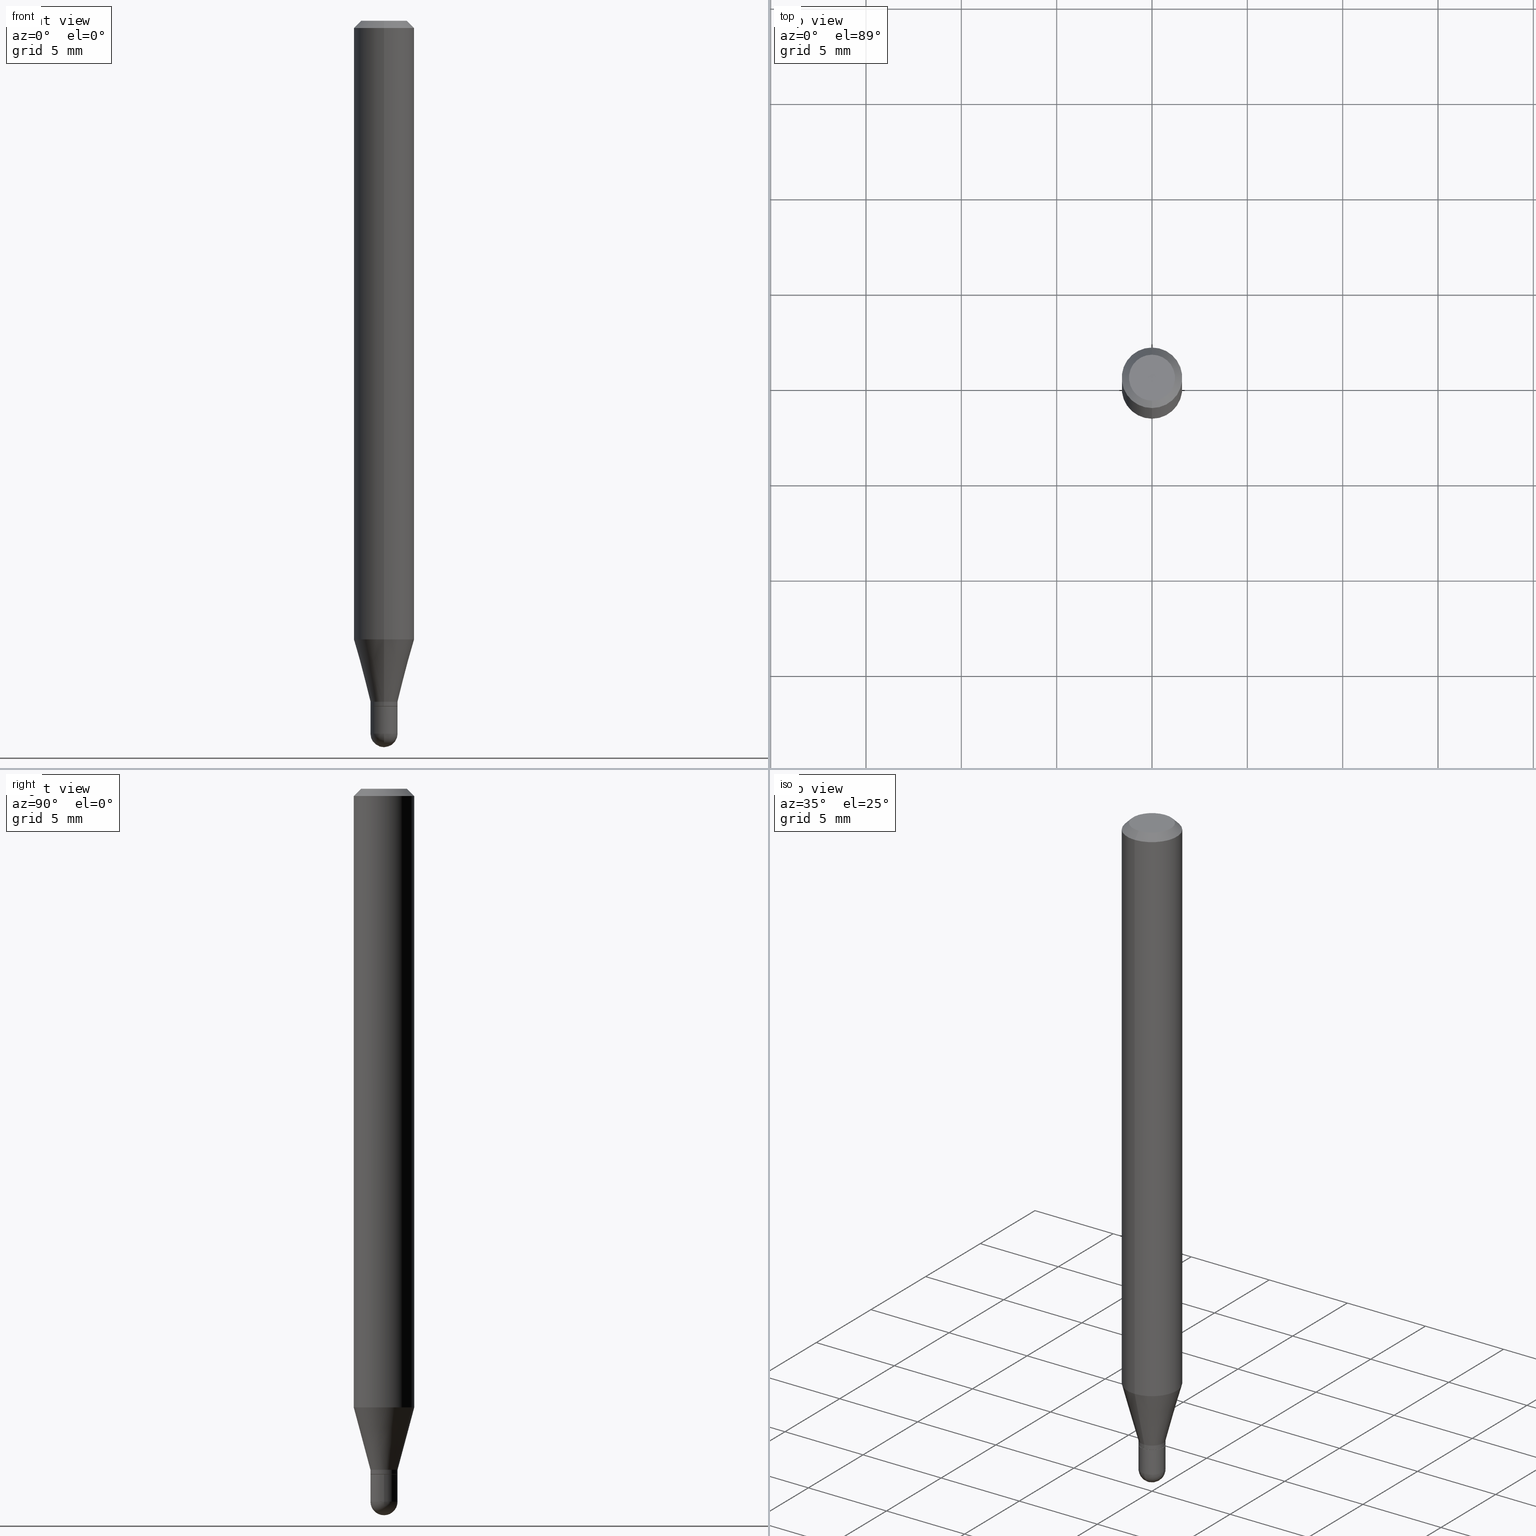
[diagram: canonical four-view strip — front | top / right | iso, engineering-drawing reading convention]
A machine part, canonical four-view strip (front | top / right | iso — engineering-drawing reading convention). The complete STEP part file that produces these views, byte-faithful:
ISO-10303-21;
HEADER;
FILE_DESCRIPTION (( 'STEP AP203' ),
    '1' );
FILE_NAME ('00791.STEP',
    '2024-03-07T18:22:40',
    ( '' ),
    ( '' ),
    'SwSTEP 2.0',
    'SolidWorks 2023',
    '' );
FILE_SCHEMA (( 'CONFIG_CONTROL_DESIGN' ));
ENDSEC;

DATA;
#1 = ORIENTED_EDGE ( 'NONE', *, *, #85, .F. ) ;
#2 = AXIS2_PLACEMENT_3D ( 'NONE', #501, #410, #339 ) ;
#3 = AXIS2_PLACEMENT_3D ( 'NONE', #360, #363, #94 ) ;
#4 = ORIENTED_EDGE ( 'NONE', *, *, #320, .F. ) ;
#5 = PERSON ( 'UNSPECIFIED', 'UNSPECIFIED', 'UNSPECIFIED', ('UNSPECIFIED'), ('UNSPECIFIED'), ('UNSPECIFIED') ) ;
#6 = ORIENTED_EDGE ( 'NONE', *, *, #29, .F. ) ;
#7 = ORIENTED_EDGE ( 'NONE', *, *, #409, .T. ) ;
#8 = DIRECTION ( 'NONE',  ( -2.445471327938569020E-29, 3.491477727548701218E-15, 1.000000000000000000 ) ) ;
#9 = AXIS2_PLACEMENT_3D ( 'NONE', #422, #216, #26 ) ;
#10 = CC_DESIGN_SECURITY_CLASSIFICATION ( #35, ( #80 ) ) ;
#11 = FACE_OUTER_BOUND ( 'NONE', #435, .T. ) ;
#12 = CARTESIAN_POINT ( 'NONE',  ( 3.840629472727447874E-16, 0.04749999999999999362, -1.747056831868805136E-16 ) ) ;
#13 = PLANE ( 'NONE',  #453 ) ;
#14 = APPROVAL ( #105, 'UNSPECIFIED' ) ;
#15 = LINE ( 'NONE', #436, #406 ) ;
#16 = AXIS2_PLACEMENT_3D ( 'NONE', #489, #59, #201 ) ;
#17 = VECTOR ( 'NONE', #284, 39.37007874015748143 ) ;
#18 = CARTESIAN_POINT ( 'NONE',  ( -4.287811248607203282E-16, -0.06250000000000005551, -0.01499999999999979128 ) ) ;
#19 = CARTESIAN_POINT ( 'NONE',  ( 0.000000000000000000, 0.000000000000000000, 0.000000000000000000 ) ) ;
#20 = CARTESIAN_POINT ( 'NONE',  ( 3.599730082704520905E-29, -5.139460530777110821E-15, -1.471999999999999975 ) ) ;
#21 = PERSON_AND_ORGANIZATION_ROLE ( 'creator' ) ;
#22 = CARTESIAN_POINT ( 'NONE',  ( 3.461564664697044766E-29, -4.942186723345187295E-15, -1.415500000000000203 ) ) ;
#23 = COORDINATED_UNIVERSAL_TIME_OFFSET ( 5, 0, .BEHIND. ) ;
#24 = VERTEX_POINT ( 'NONE', #404 ) ;
#25 = LOCAL_TIME ( 13, 22, 40.00000000000000000, #31 ) ;
#26 = DIRECTION ( 'NONE',  ( 1.000000000000000000, -6.982962677686262766E-15, 0.000000000000000000 ) ) ;
#27 = CALENDAR_DATE ( 2024, 7, 3 ) ;
#28 = PLANE ( 'NONE',  #477 ) ;
#29 = EDGE_CURVE ( 'NONE', #358, #117, #427, .T. ) ;
#30 = DIRECTION ( 'NONE',  ( -1.807323732225330139E-15, -0.2588190451025181860, 0.9659258262890689783 ) ) ;
#31 = COORDINATED_UNIVERSAL_TIME_OFFSET ( 5, 0, .BEHIND. ) ;
#32 = CARTESIAN_POINT ( 'NONE',  ( 0.000000000000000000, 0.000000000000000000, 0.000000000000000000 ) ) ;
#33 = CIRCLE ( 'NONE', #141, 0.02800000000000000752 ) ;
#34 = ORIENTED_EDGE ( 'NONE', *, *, #354, .T. ) ;
#35 = SECURITY_CLASSIFICATION ( '', '', #345 ) ;
#36 = VERTEX_POINT ( 'NONE', #89 ) ;
#37 = EDGE_CURVE ( 'NONE', #358, #269, #494, .T. ) ;
#38 = ORIENTED_EDGE ( 'NONE', *, *, #230, .F. ) ;
#39 = ORIENTED_EDGE ( 'NONE', *, *, #320, .T. ) ;
#40 = PRODUCT ( '00791', '00791', '', ( #454 ) ) ;
#41 = CIRCLE ( 'NONE', #149, 0.02800000000000000405 ) ;
#42 = APPROVAL_PERSON_ORGANIZATION ( #500, #275, #343 ) ;
#43 = ORIENTED_EDGE ( 'NONE', *, *, #70, .T. ) ;
#44 = ADVANCED_FACE ( 'NONE', ( #323 ), #57, .T. ) ;
#45 = PRODUCT_RELATED_PRODUCT_CATEGORY ( 'detail', '', ( #40 ) ) ;
#46 = VERTEX_POINT ( 'NONE', #51 ) ;
#47 = CARTESIAN_POINT ( 'NONE',  ( 3.462783829558154044E-29, -4.943937575801894533E-15, -1.416000000000000147 ) ) ;
#48 = CARTESIAN_POINT ( 'NONE',  ( -4.364351673553916201E-16, -0.06250000000000000000, 2.182173579717938261E-16 ) ) ;
#49 = AXIS2_PLACEMENT_3D ( 'NONE', #95, #241, #318 ) ;
#50 = AXIS2_PLACEMENT_3D ( 'NONE', #167, #128, #131 ) ;
#51 = CARTESIAN_POINT ( 'NONE',  ( 4.440892098500935790E-16, 0.06249999999999551747, -1.277244247138874522 ) ) ;
#52 = CARTESIAN_POINT ( 'NONE',  ( -4.364351673553912750E-16, -0.06250000000000005551, -0.01499999999999979128 ) ) ;
#53 = DIRECTION ( 'NONE',  ( -2.445468806185136597E-29, 3.491481338843145583E-15, 1.000000000000000000 ) ) ;
#54 = FACE_OUTER_BOUND ( 'NONE', #352, .T. ) ;
#55 = LINE ( 'NONE', #247, #310 ) ;
#56 = DIRECTION ( 'NONE',  ( -2.445471327938569020E-29, 3.491477727548701218E-15, 1.000000000000000000 ) ) ;
#57 = CONICAL_SURFACE ( 'NONE', #441, 0.02799999999999992426, 0.2617993877991502960 ) ;
#58 = EDGE_CURVE ( 'NONE', #473, #295, #41, .T. ) ;
#59 = DIRECTION ( 'NONE',  ( 1.000000000000000000, -6.982962677686265922E-15, 4.883557194083112340E-29 ) ) ;
#60 = CARTESIAN_POINT ( 'NONE',  ( 1.953992523340621634E-16, 0.02749999999999505965, -1.416000000000000147 ) ) ;
#61 = COORDINATED_UNIVERSAL_TIME_OFFSET ( 5, 0, .BEHIND. ) ;
#62 = EDGE_LOOP ( 'NONE', ( #212, #38 ) ) ;
#63 = CARTESIAN_POINT ( 'NONE',  ( -1.989519660127922616E-16, -0.02800000000000517353, -1.471999999999999975 ) ) ;
#64 = DATE_AND_TIME ( #299, #251 ) ;
#65 = ORIENTED_EDGE ( 'NONE', *, *, #103, .F. ) ;
#66 = LOCAL_TIME ( 13, 22, 40.00000000000000000, #23 ) ;
#67 = LINE ( 'NONE', #182, #378 ) ;
#68 = DIRECTION ( 'NONE',  ( 1.000000000000000000, 0.000000000000000000, 0.000000000000000000 ) ) ;
#69 = ORIENTED_EDGE ( 'NONE', *, *, #504, .T. ) ;
#70 = EDGE_CURVE ( 'NONE', #184, #385, #195, .T. ) ;
#71 = CARTESIAN_POINT ( 'NONE',  ( 2.166807700575379418E-46, -3.093620742966239913E-32, -8.860491128317210045E-18 ) ) ;
#72 = LENGTH_MEASURE_WITH_UNIT ( LENGTH_MEASURE( 0.02539999999999999897 ), #98 );
#73 = DIRECTION ( 'NONE',  ( -2.445468806185136877E-29, 3.491481338843145188E-15, 1.000000000000000000 ) ) ;
#74 = ORIENTED_EDGE ( 'NONE', *, *, #456, .T. ) ;
#75 = ADVANCED_FACE ( 'NONE', ( #481 ), #127, .T. ) ;
#76 = CARTESIAN_POINT ( 'NONE',  ( 3.123464185152600685E-29, -4.459469841525088117E-15, -1.277244247138874078 ) ) ;
#77 = CIRCLE ( 'NONE', #240, 0.04749999999999999362 ) ;
#78 = CIRCLE ( 'NONE', #173, 0.04749999999999999362 ) ;
#79 = ORIENTED_EDGE ( 'NONE', *, *, #354, .F. ) ;
#80 = PRODUCT_DEFINITION_FORMATION_WITH_SPECIFIED_SOURCE ( 'ANY', '', #40, .NOT_KNOWN. ) ;
#81 = ADVANCED_FACE ( 'NONE', ( #326 ), #163, .T. ) ;
#82 = VERTEX_POINT ( 'NONE', #487 ) ;
#83 = ORIENTED_EDGE ( 'NONE', *, *, #368, .F. ) ;
#84 = ORIENTED_EDGE ( 'NONE', *, *, #376, .T. ) ;
#85 = EDGE_CURVE ( 'NONE', #413, #421, #395, .T. ) ;
#86 = ORIENTED_EDGE ( 'NONE', *, *, #469, .T. ) ;
#87 = CARTESIAN_POINT ( 'NONE',  ( 1.955229549752501107E-16, 0.02799999999999506009, -1.416000000000000147 ) ) ;
#88 = DIRECTION ( 'NONE',  ( -2.445471327938569020E-29, 3.491477727548701218E-15, 1.000000000000000000 ) ) ;
#89 = CARTESIAN_POINT ( 'NONE',  ( -4.364351673553605587E-16, -0.06250000000000446865, -1.277244247138873856 ) ) ;
#90 = CYLINDRICAL_SURFACE ( 'NONE', #464, 0.02800000000000000752 ) ;
#91 = AXIS2_PLACEMENT_3D ( 'NONE', #332, #491, #175 ) ;
#92 = AXIS2_PLACEMENT_3D ( 'NONE', #76, #155, #348 ) ;
#93 = DIRECTION ( 'NONE',  ( -6.982962677686266711E-15, -1.000000000000000000, 0.000000000000000000 ) ) ;
#94 = DIRECTION ( 'NONE',  ( -6.982962677686266711E-15, -1.000000000000000000, 0.000000000000000000 ) ) ;
#95 = CARTESIAN_POINT ( 'NONE',  ( 3.438332687081628621E-29, -4.909017684933475227E-15, -1.406000000000000139 ) ) ;
#96 = DIRECTION ( 'NONE',  ( -1.000000000000000000, 6.982962677686265922E-15, -4.883557194083112901E-29 ) ) ;
#97 = FACE_OUTER_BOUND ( 'NONE', #349, .T. ) ;
#98 =( LENGTH_UNIT ( ) NAMED_UNIT ( * ) SI_UNIT ( $, .METRE. ) );
#99 = VECTOR ( 'NONE', #73, 39.37007874015748143 ) ;
#100 = VECTOR ( 'NONE', #239, 39.37007874015748143 ) ;
#101 = CARTESIAN_POINT ( 'NONE',  ( 3.599730082704520905E-29, -5.139460530777110821E-15, -1.471999999999999975 ) ) ;
#102 = ORIENTED_EDGE ( 'NONE', *, *, #235, .F. ) ;
#103 = EDGE_CURVE ( 'NONE', #385, #46, #55, .T. ) ;
#104 = CARTESIAN_POINT ( 'NONE',  ( -1.920314736363377085E-16, -0.02750000000000494410, -1.416000000000000147 ) ) ;
#105 = APPROVAL_STATUS ( 'not_yet_approved' ) ;
#106 = VERTEX_POINT ( 'NONE', #407 ) ;
#107 = LINE ( 'NONE', #335, #485 ) ;
#108 = APPROVAL_ROLE ( '' ) ;
#109 = VECTOR ( 'NONE', #279, 39.37007874015748143 ) ;
#110 = CONICAL_SURFACE ( 'NONE', #338, 0.02799999999999992426, 0.2617993877991502960 ) ;
#111 = CARTESIAN_POINT ( 'NONE',  ( -1.955229549751805184E-16, -0.02800000000000483352, -1.406000000000000139 ) ) ;
#112 = PERSON_AND_ORGANIZATION ( #5, #478 ) ;
#113 = LINE ( 'NONE', #60, #317 ) ;
#114 = CALENDAR_DATE ( 2024, 7, 3 ) ;
#115 = DESIGN_CONTEXT ( 'detailed design', #206, 'design' ) ;
#116 = DIRECTION ( 'NONE',  ( -2.445471327938569020E-29, 3.491477727548701218E-15, 1.000000000000000000 ) ) ;
#117 = VERTEX_POINT ( 'NONE', #361 ) ;
#118 = AXIS2_PLACEMENT_3D ( 'NONE', #244, #166, #238 ) ;
#119 = CIRCLE ( 'NONE', #327, 0.02800000000000000752 ) ;
#120 = EDGE_LOOP ( 'NONE', ( #426, #393 ) ) ;
#121 = ADVANCED_FACE ( 'NONE', ( #364 ), #505, .T. ) ;
#122 = ORIENTED_EDGE ( 'NONE', *, *, #289, .T. ) ;
#123 = MANIFOLD_SOLID_BREP ( 'Body-Move/Copy2[2]', #433 ) ;
#124 = EDGE_LOOP ( 'NONE', ( #4, #84, #86, #161 ) ) ;
#125 = VERTEX_POINT ( 'NONE', #12 ) ;
#126 = AXIS2_PLACEMENT_3D ( 'NONE', #19, #208, #205 ) ;
#127 = CYLINDRICAL_SURFACE ( 'NONE', #346, 0.06250000000000000000 ) ;
#128 = DIRECTION ( 'NONE',  ( -2.445471327938569020E-29, 3.491477727548701218E-15, 1.000000000000000000 ) ) ;
#129 = ADVANCED_FACE ( 'NONE', ( #97 ), #372, .T. ) ;
#130 = DIRECTION ( 'NONE',  ( -2.445471327938569020E-29, 3.491477727548701218E-15, 1.000000000000000000 ) ) ;
#131 = DIRECTION ( 'NONE',  ( -6.982962677686265922E-15, -1.000000000000000000, 3.483106191921935554E-15 ) ) ;
#132 = FACE_OUTER_BOUND ( 'NONE', #156, .T. ) ;
#133 = CARTESIAN_POINT ( 'NONE',  ( -1.955229549752149325E-16, -0.02799999999999992426, 9.776137637136337456E-17 ) ) ;
#134 = AXIS2_PLACEMENT_3D ( 'NONE', #172, #8, #450 ) ;
#135 = DIRECTION ( 'NONE',  ( -1.000000000000000000, 6.982962677686265922E-15, -4.876176775795935793E-29 ) ) ;
#136 = SPHERICAL_SURFACE ( 'NONE', #181, 0.02800000000000004916 ) ;
#137 = DIRECTION ( 'NONE',  ( 1.000000000000000000, -6.982962677686262766E-15, 0.000000000000000000 ) ) ;
#138 = CC_DESIGN_PERSON_AND_ORGANIZATION_ASSIGNMENT ( #112, #420, ( #80 ) ) ;
#139 = DIRECTION ( 'NONE',  ( -2.445471327938568460E-29, 3.491477727548701218E-15, 1.000000000000000000 ) ) ;
#140 =( NAMED_UNIT ( * ) SI_UNIT ( $, .STERADIAN. ) SOLID_ANGLE_UNIT ( ) );
#141 = AXIS2_PLACEMENT_3D ( 'NONE', #101, #221, #298 ) ;
#142 = LINE ( 'NONE', #377, #99 ) ;
#143 = CC_DESIGN_DATE_AND_TIME_ASSIGNMENT ( #183, #334, ( #35 ) ) ;
#144 = DIRECTION ( 'NONE',  ( -2.445471327938569020E-29, 3.491477727548701218E-15, 1.000000000000000000 ) ) ;
#145 = PERSON_AND_ORGANIZATION ( #5, #478 ) ;
#146 = ORIENTED_EDGE ( 'NONE', *, *, #235, .T. ) ;
#147 = DIRECTION ( 'NONE',  ( -4.937700262164674260E-15, -0.7071067811865632269, 0.7071067811865319186 ) ) ;
#148 = APPROVAL_DATE_TIME ( #411, #275 ) ;
#149 = AXIS2_PLACEMENT_3D ( 'NONE', #47, #53, #137 ) ;
#150 = CIRCLE ( 'NONE', #398, 0.02799999999999992426 ) ;
#151 = CARTESIAN_POINT ( 'NONE',  ( 0.02800000000000000405, -5.139460530777110033E-15, -1.416000000000000147 ) ) ;
#152 = COORDINATED_UNIVERSAL_TIME_OFFSET ( 5, 0, .BEHIND. ) ;
#153 = ORIENTED_EDGE ( 'NONE', *, *, #469, .F. ) ;
#154 = ADVANCED_FACE ( 'NONE', ( #11 ), #273, .T. ) ;
#155 = DIRECTION ( 'NONE',  ( -2.445471327938569020E-29, 3.491477727548701218E-15, 1.000000000000000000 ) ) ;
#156 = EDGE_LOOP ( 'NONE', ( #388, #455 ) ) ;
#157 = ORIENTED_EDGE ( 'NONE', *, *, #368, .T. ) ;
#158 = ORIENTED_EDGE ( 'NONE', *, *, #376, .F. ) ;
#159 = CC_DESIGN_PERSON_AND_ORGANIZATION_ASSIGNMENT ( #373, #21, ( #424 ) ) ;
#160 = ORIENTED_EDGE ( 'NONE', *, *, #512, .T. ) ;
#161 = ORIENTED_EDGE ( 'NONE', *, *, #456, .F. ) ;
#162 = CARTESIAN_POINT ( 'NONE',  ( 0.000000000000000000, 0.000000000000000000, 0.000000000000000000 ) ) ;
#163 = CONICAL_SURFACE ( 'NONE', #397, 0.06250000000000000000, 0.7853981633974483900 ) ;
#164 = DIRECTION ( 'NONE',  ( -2.445468806185136597E-29, 3.491481338843145583E-15, 1.000000000000000000 ) ) ;
#165 = APPROVAL_PERSON_ORGANIZATION ( #145, #14, #215 ) ;
#166 = DIRECTION ( 'NONE',  ( 2.445471327938569020E-29, -3.491477727548701218E-15, -1.000000000000000000 ) ) ;
#167 = CARTESIAN_POINT ( 'NONE',  ( 3.668206991907855387E-31, -5.237216591323055179E-17, -0.01500000000000000812 ) ) ;
#168 = CARTESIAN_POINT ( 'NONE',  ( -1.955229549751805184E-16, -0.02800000000000483352, -1.406000000000000139 ) ) ;
#169 = CARTESIAN_POINT ( 'NONE',  ( -0.02800000000000000405, -4.842747087276674449E-15, -1.416000000000000147 ) ) ;
#170 = DIMENSIONAL_EXPONENTS ( 1.000000000000000000, 0.000000000000000000, 0.000000000000000000, 0.000000000000000000, 0.000000000000000000, 0.000000000000000000, 0.000000000000000000 ) ;
#171 = CARTESIAN_POINT ( 'NONE',  ( 3.597335617094818729E-29, -5.142889541814723551E-15, -1.471999999999999975 ) ) ;
#172 = CARTESIAN_POINT ( 'NONE',  ( 3.461564664697044766E-29, -4.942186723345187295E-15, -1.415500000000000203 ) ) ;
#173 = AXIS2_PLACEMENT_3D ( 'NONE', #255, #414, #465 ) ;
#174 = EDGE_LOOP ( 'NONE', ( #160, #39, #430, #153 ) ) ;
#175 = DIRECTION ( 'NONE',  ( -6.982962677686266711E-15, -1.000000000000000000, 0.000000000000000000 ) ) ;
#176 = DATE_TIME_ROLE ( 'creation_date' ) ;
#177 = DIRECTION ( 'NONE',  ( -2.445471327938569020E-29, 3.491477727548701218E-15, 1.000000000000000000 ) ) ;
#178 = DATE_AND_TIME ( #114, #66 ) ;
#179 = EDGE_LOOP ( 'NONE', ( #300, #192, #83, #102 ) ) ;
#180 = AXIS2_PLACEMENT_3D ( 'NONE', #87, #402, #135 ) ;
#181 = AXIS2_PLACEMENT_3D ( 'NONE', #331, #246, #324 ) ;
#182 = CARTESIAN_POINT ( 'NONE',  ( 4.440892098500625669E-16, 0.06250000000000000000, -2.182173579717938261E-16 ) ) ;
#183 = DATE_AND_TIME ( #466, #386 ) ;
#184 = VERTEX_POINT ( 'NONE', #168 ) ;
#185 = CARTESIAN_POINT ( 'NONE',  ( -1.955229549751809868E-16, -0.02800000000000496189, -1.415500000000000203 ) ) ;
#186 = DIRECTION ( 'NONE',  ( -2.445471327938569020E-29, 3.491477727548701218E-15, 1.000000000000000000 ) ) ;
#187 = APPROVAL_STATUS ( 'not_yet_approved' ) ;
#188 = CIRCLE ( 'NONE', #281, 0.02800000000000000752 ) ;
#189 = AXIS2_PLACEMENT_3D ( 'NONE', #497, #336, #68 ) ;
#190 = CYLINDRICAL_SURFACE ( 'NONE', #211, 0.02800000000000000752 ) ;
#191 = ORIENTED_EDGE ( 'NONE', *, *, #29, .T. ) ;
#192 = ORIENTED_EDGE ( 'NONE', *, *, #362, .T. ) ;
#193 = EDGE_CURVE ( 'NONE', #24, #473, #15, .T. ) ;
#194 = ORIENTED_EDGE ( 'NONE', *, *, #103, .T. ) ;
#195 = CIRCLE ( 'NONE', #49, 0.02799999999999992426 ) ;
#196 = AXIS2_PLACEMENT_3D ( 'NONE', #510, #116, #264 ) ;
#197 = ORIENTED_EDGE ( 'NONE', *, *, #444, .F. ) ;
#198 = ORIENTED_EDGE ( 'NONE', *, *, #362, .F. ) ;
#199 = ADVANCED_FACE ( 'NONE', ( #132 ), #443, .F. ) ;
#200 = VERTEX_POINT ( 'NONE', #294 ) ;
#201 = DIRECTION ( 'NONE',  ( 6.982962677686265922E-15, 1.000000000000000000, 0.000000000000000000 ) ) ;
#202 = CIRCLE ( 'NONE', #134, 0.02799999999999992426 ) ;
#203 = LINE ( 'NONE', #440, #100 ) ;
#204 = DIRECTION ( 'NONE',  ( 6.982962677686265922E-15, 1.000000000000000000, -3.483106191921935554E-15 ) ) ;
#205 = DIRECTION ( 'NONE',  ( -6.982962677686266711E-15, -1.000000000000000000, 3.491477727548701218E-15 ) ) ;
#206 = APPLICATION_CONTEXT ( 'configuration controlled 3d designs of mechanical parts and assemblies' ) ;
#207 = DIRECTION ( 'NONE',  ( -2.445468806185136877E-29, 3.491481338843145188E-15, 1.000000000000000000 ) ) ;
#208 = DIRECTION ( 'NONE',  ( -2.445471327938569020E-29, 3.491477727548701218E-15, 1.000000000000000000 ) ) ;
#209 = ORIENTED_EDGE ( 'NONE', *, *, #429, .T. ) ;
#210 = DIRECTION ( 'NONE',  ( -6.982962677686265922E-15, -1.000000000000000000, 3.491477727548701218E-15 ) ) ;
#211 = AXIS2_PLACEMENT_3D ( 'NONE', #32, #467, #384 ) ;
#212 = ORIENTED_EDGE ( 'NONE', *, *, #476, .F. ) ;
#213 = COORDINATED_UNIVERSAL_TIME_OFFSET ( 5, 0, .BEHIND. ) ;
#214 = CARTESIAN_POINT ( 'NONE',  ( 3.462787400361014154E-29, -4.943932462208961407E-15, -1.416000000000000147 ) ) ;
#215 = APPROVAL_ROLE ( '' ) ;
#216 = DIRECTION ( 'NONE',  ( -2.445468806185136597E-29, 3.491481338843145583E-15, 1.000000000000000000 ) ) ;
#217 = EDGE_CURVE ( 'NONE', #385, #184, #325, .T. ) ;
#218 = APPLICATION_PROTOCOL_DEFINITION ( 'international standard', 'config_control_design', 1994, #206 ) ;
#219 = CIRCLE ( 'NONE', #2, 0.06250000000000000000 ) ;
#220 = APPROVAL_PERSON_ORGANIZATION ( #502, #311, #108 ) ;
#221 = DIRECTION ( 'NONE',  ( -2.445468806185136597E-29, 3.491481338843145583E-15, 1.000000000000000000 ) ) ;
#222 = ORIENTED_EDGE ( 'NONE', *, *, #70, .F. ) ;
#223 = CARTESIAN_POINT ( 'NONE',  ( 3.438332687081628621E-29, -4.909017684933475227E-15, -1.406000000000000139 ) ) ;
#224 = DIRECTION ( 'NONE',  ( 1.000000000000000000, -6.982962677686261189E-15, 0.000000000000000000 ) ) ;
#225 = ORIENTED_EDGE ( 'NONE', *, *, #217, .F. ) ;
#226 = PRODUCT_DEFINITION_SHAPE ( 'NONE', 'NONE',  #424 ) ;
#227 = AXIS2_PLACEMENT_3D ( 'NONE', #342, #252, #224 ) ;
#228 = ORIENTED_EDGE ( 'NONE', *, *, #429, .F. ) ;
#229 = ORIENTED_EDGE ( 'NONE', *, *, #289, .F. ) ;
#230 = EDGE_CURVE ( 'NONE', #470, #315, #353, .T. ) ;
#231 = SHAPE_DEFINITION_REPRESENTATION ( #226, #237 ) ;
#232 = EDGE_LOOP ( 'NONE', ( #65, #261, #392, #158 ) ) ;
#233 = CIRCLE ( 'NONE', #495, 0.06250000000000000000 ) ;
#234 = EDGE_LOOP ( 'NONE', ( #43, #194, #507, #307 ) ) ;
#235 = EDGE_CURVE ( 'NONE', #315, #274, #107, .T. ) ;
#236 = ORIENTED_EDGE ( 'NONE', *, *, #330, .T. ) ;
#237 = ADVANCED_BREP_SHAPE_REPRESENTATION ( '00791', ( #276, #123, #189 ), #347 ) ;
#238 = DIRECTION ( 'NONE',  ( 6.982962677686265922E-15, 1.000000000000000000, -3.483106191921935554E-15 ) ) ;
#239 = DIRECTION ( 'NONE',  ( 4.937700262164548042E-15, 0.7071067811865451302, -0.7071067811865499042 ) ) ;
#240 = AXIS2_PLACEMENT_3D ( 'NONE', #71, #499, #460 ) ;
#241 = DIRECTION ( 'NONE',  ( -2.445471327938569020E-29, 3.491477727548701218E-15, 1.000000000000000000 ) ) ;
#242 = CIRCLE ( 'NONE', #3, 0.02750000000000000014 ) ;
#243 = DIRECTION ( 'NONE',  ( -2.445471327938569020E-29, 3.491477727548701218E-15, 1.000000000000000000 ) ) ;
#244 = CARTESIAN_POINT ( 'NONE',  ( 3.668206991907855387E-31, -5.237216591323055179E-17, -0.01500000000000000812 ) ) ;
#245 = EDGE_CURVE ( 'NONE', #125, #413, #78, .T. ) ;
#246 = DIRECTION ( 'NONE',  ( -1.000000000000000000, 6.982962677686265922E-15, -4.883557194083112901E-29 ) ) ;
#247 = CARTESIAN_POINT ( 'NONE',  ( 1.989519660128618786E-16, 0.02799999999999501846, -1.406000000000000139 ) ) ;
#248 = DIRECTION ( 'NONE',  ( 6.982962677686265922E-15, 1.000000000000000000, 0.000000000000000000 ) ) ;
#249 = DIRECTION ( 'NONE',  ( 2.445471327938569020E-29, -3.491477727548701218E-15, -1.000000000000000000 ) ) ;
#250 = LINE ( 'NONE', #286, #508 ) ;
#251 = LOCAL_TIME ( 13, 22, 40.00000000000000000, #152 ) ;
#252 = DIRECTION ( 'NONE',  ( -2.445468806185136597E-29, 3.491481338843145583E-15, 1.000000000000000000 ) ) ;
#253 = APPROVAL_STATUS ( 'not_yet_approved' ) ;
#254 = LINE ( 'NONE', #111, #258 ) ;
#255 = CARTESIAN_POINT ( 'NONE',  ( 2.166807700575379418E-46, -3.093620742966239913E-32, -8.860491128317210045E-18 ) ) ;
#256 = ORIENTED_EDGE ( 'NONE', *, *, #314, .F. ) ;
#257 = EDGE_CURVE ( 'NONE', #269, #200, #188, .T. ) ;
#258 = VECTOR ( 'NONE', #30, 39.37007874015748143 ) ;
#259 = CARTESIAN_POINT ( 'NONE',  ( 3.462787400361014154E-29, -4.943932462208961407E-15, -1.416000000000000147 ) ) ;
#260 =( NAMED_UNIT ( * ) PLANE_ANGLE_UNIT ( ) SI_UNIT ( $, .RADIAN. ) );
#261 = ORIENTED_EDGE ( 'NONE', *, *, #217, .T. ) ;
#262 = CARTESIAN_POINT ( 'NONE',  ( 3.667005976472853527E-29, -5.238936513783524936E-15, -1.500000000000000222 ) ) ;
#263 = PERSON_AND_ORGANIZATION_ROLE ( 'design_owner' ) ;
#264 = DIRECTION ( 'NONE',  ( -6.982962677686266711E-15, -1.000000000000000000, 0.000000000000000000 ) ) ;
#265 = ORIENTED_EDGE ( 'NONE', *, *, #245, .F. ) ;
#266 = AXIS2_PLACEMENT_3D ( 'NONE', #171, #285, #321 ) ;
#267 = CIRCLE ( 'NONE', #50, 0.06250000000000000000 ) ;
#268 = ADVANCED_FACE ( 'NONE', ( #381 ), #28, .F. ) ;
#269 = VERTEX_POINT ( 'NONE', #63 ) ;
#270 = ORIENTED_EDGE ( 'NONE', *, *, #257, .F. ) ;
#271 = ORIENTED_EDGE ( 'NONE', *, *, #193, .F. ) ;
#272 = EDGE_CURVE ( 'NONE', #24, #269, #33, .T. ) ;
#273 = CONICAL_SURFACE ( 'NONE', #118, 0.06250000000000000000, 0.7853981633974483900 ) ;
#274 = VERTEX_POINT ( 'NONE', #185 ) ;
#275 = APPROVAL ( #253, 'UNSPECIFIED' ) ;
#276 = MANIFOLD_SOLID_BREP ( 'Body-Move/Copy2[1]', #292 ) ;
#277 = DIRECTION ( 'NONE',  ( -6.982962677686266711E-15, -1.000000000000000000, 3.491477727548701218E-15 ) ) ;
#278 = DIRECTION ( 'NONE',  ( 2.445471327938568460E-29, -3.491477727548701218E-15, -1.000000000000000000 ) ) ;
#279 = DIRECTION ( 'NONE',  ( -4.851104656540964275E-15, -0.7071067811865500152, -0.7071067811865450192 ) ) ;
#280 = CARTESIAN_POINT ( 'NONE',  ( 1.971756091734621196E-16, 0.02749999999999505965, -1.416000000000000147 ) ) ;
#281 = AXIS2_PLACEMENT_3D ( 'NONE', #382, #452, #496 ) ;
#282 = DIRECTION ( 'NONE',  ( -2.445471327938569020E-29, 3.491477727548701218E-15, 1.000000000000000000 ) ) ;
#283 = AXIS2_PLACEMENT_3D ( 'NONE', #448, #96, #248 ) ;
#284 = DIRECTION ( 'NONE',  ( -2.445471327938569020E-29, 3.491477727548701218E-15, 1.000000000000000000 ) ) ;
#285 = DIRECTION ( 'NONE',  ( -1.000000000000000000, 7.105427357601001070E-15, -4.926315508542082329E-29 ) ) ;
#286 = CARTESIAN_POINT ( 'NONE',  ( 1.989519660128274892E-16, 0.02799999999999992426, -9.776137637136337456E-17 ) ) ;
#287 = CARTESIAN_POINT ( 'NONE',  ( 3.668206991907855387E-31, -5.237216591323055179E-17, -0.01500000000000000812 ) ) ;
#288 = CYLINDRICAL_SURFACE ( 'NONE', #391, 0.06250000000000000000 ) ;
#289 = EDGE_CURVE ( 'NONE', #200, #295, #142, .T. ) ;
#290 = DIRECTION ( 'NONE',  ( -2.445471327938569020E-29, 3.491477727548701218E-15, 1.000000000000000000 ) ) ;
#291 = CIRCLE ( 'NONE', #9, 0.02800000000000000405 ) ;
#292 = CLOSED_SHELL ( 'NONE', ( #371, #493, #199, #498, #438 ) ) ;
#293 = EDGE_CURVE ( 'NONE', #200, #117, #471, .T. ) ;
#294 = CARTESIAN_POINT ( 'NONE',  ( 0.02800000000000000752, -5.237222008264718177E-15, -1.471999999999999975 ) ) ;
#295 = VERTEX_POINT ( 'NONE', #151 ) ;
#296 = FACE_OUTER_BOUND ( 'NONE', #389, .T. ) ;
#297 = DATE_AND_TIME ( #423, #25 ) ;
#298 = DIRECTION ( 'NONE',  ( 1.000000000000000000, -6.982962677686261189E-15, 0.000000000000000000 ) ) ;
#299 = CALENDAR_DATE ( 2024, 7, 3 ) ;
#300 = ORIENTED_EDGE ( 'NONE', *, *, #476, .T. ) ;
#301 = AXIS2_PLACEMENT_3D ( 'NONE', #162, #479, #277 ) ;
#302 = FACE_OUTER_BOUND ( 'NONE', #232, .T. ) ;
#303 = APPROVAL_DATE_TIME ( #64, #311 ) ;
#304 = ORIENTED_EDGE ( 'NONE', *, *, #409, .F. ) ;
#305 = FACE_OUTER_BOUND ( 'NONE', #380, .T. ) ;
#306 = APPLICATION_CONTEXT ( 'configuration controlled 3d designs of mechanical parts and assemblies' ) ;
#307 = ORIENTED_EDGE ( 'NONE', *, *, #333, .F. ) ;
#308 = EDGE_CURVE ( 'NONE', #295, #473, #291, .T. ) ;
#309 = ORIENTED_EDGE ( 'NONE', *, *, #230, .T. ) ;
#310 = VECTOR ( 'NONE', #369, 39.37007874015748143 ) ;
#311 = APPROVAL ( #187, 'UNSPECIFIED' ) ;
#312 = CC_DESIGN_APPROVAL ( #311, ( #80 ) ) ;
#313 = EDGE_LOOP ( 'NONE', ( #157, #431, #222, #228 ) ) ;
#314 = EDGE_CURVE ( 'NONE', #413, #125, #77, .T. ) ;
#315 = VERTEX_POINT ( 'NONE', #104 ) ;
#316 = EDGE_LOOP ( 'NONE', ( #256, #468, #236, #304 ) ) ;
#317 = VECTOR ( 'NONE', #374, 39.37007874015748143 ) ;
#318 = DIRECTION ( 'NONE',  ( -6.982962677686266711E-15, -1.000000000000000000, 0.000000000000000000 ) ) ;
#319 = CYLINDRICAL_SURFACE ( 'NONE', #126, 0.02799999999999992426 ) ;
#320 = EDGE_CURVE ( 'NONE', #46, #106, #67, .T. ) ;
#321 = DIRECTION ( 'NONE',  ( -7.105427357601001070E-15, -1.000000000000000000, 0.000000000000000000 ) ) ;
#322 = FACE_OUTER_BOUND ( 'NONE', #120, .T. ) ;
#323 = FACE_OUTER_BOUND ( 'NONE', #234, .T. ) ;
#324 = DIRECTION ( 'NONE',  ( 6.982962677686265922E-15, 1.000000000000000000, 0.000000000000000000 ) ) ;
#325 = CIRCLE ( 'NONE', #91, 0.02799999999999992426 ) ;
#326 = FACE_OUTER_BOUND ( 'NONE', #316, .T. ) ;
#327 = AXIS2_PLACEMENT_3D ( 'NONE', #20, #344, #503 ) ;
#328 = CARTESIAN_POINT ( 'NONE',  ( 3.316907271900976096E-16, 0.04749999999999999362, -1.702754376227218940E-16 ) ) ;
#329 = EDGE_LOOP ( 'NONE', ( #271, #387, #459, #122, #511 ) ) ;
#330 = EDGE_CURVE ( 'NONE', #421, #106, #219, .T. ) ;
#331 = CARTESIAN_POINT ( 'NONE',  ( 3.597335617094818729E-29, -5.142889541814723551E-15, -1.471999999999999975 ) ) ;
#332 = CARTESIAN_POINT ( 'NONE',  ( 3.438332687081628621E-29, -4.909017684933475227E-15, -1.406000000000000139 ) ) ;
#333 = EDGE_CURVE ( 'NONE', #184, #36, #254, .T. ) ;
#334 = DATE_TIME_ROLE ( 'classification_date' ) ;
#335 = CARTESIAN_POINT ( 'NONE',  ( -1.920314736363377085E-16, -0.02750000000000494410, -1.416000000000000147 ) ) ;
#336 = DIRECTION ( 'NONE',  ( 0.000000000000000000, 0.000000000000000000, 1.000000000000000000 ) ) ;
#337 = ORIENTED_EDGE ( 'NONE', *, *, #272, .F. ) ;
#338 = AXIS2_PLACEMENT_3D ( 'NONE', #223, #144, #419 ) ;
#339 = DIRECTION ( 'NONE',  ( -6.982962677686265922E-15, -1.000000000000000000, 3.483106191921935554E-15 ) ) ;
#340 = ORIENTED_EDGE ( 'NONE', *, *, #308, .F. ) ;
#341 = ADVANCED_FACE ( 'NONE', ( #302 ), #110, .T. ) ;
#342 = CARTESIAN_POINT ( 'NONE',  ( 3.599730082704520905E-29, -5.139460530777110821E-15, -1.471999999999999975 ) ) ;
#343 = APPROVAL_ROLE ( '' ) ;
#344 = DIRECTION ( 'NONE',  ( -2.445468806185136597E-29, 3.491481338843145583E-15, 1.000000000000000000 ) ) ;
#345 = SECURITY_CLASSIFICATION_LEVEL ( 'unclassified' ) ;
#346 = AXIS2_PLACEMENT_3D ( 'NONE', #446, #130, #439 ) ;
#347 =( GEOMETRIC_REPRESENTATION_CONTEXT ( 3 ) GLOBAL_UNCERTAINTY_ASSIGNED_CONTEXT ( ( #509 ) ) GLOBAL_UNIT_ASSIGNED_CONTEXT ( ( #379, #260, #140 ) ) REPRESENTATION_CONTEXT ( 'NONE', 'WORKASPACE' ) );
#348 = DIRECTION ( 'NONE',  ( -6.982962677686265922E-15, -1.000000000000000000, 4.370956789862821150E-15 ) ) ;
#349 = EDGE_LOOP ( 'NONE', ( #197, #69, #209, #225 ) ) ;
#350 = ORIENTED_EDGE ( 'NONE', *, *, #37, .T. ) ;
#351 = CC_DESIGN_PERSON_AND_ORGANIZATION_ASSIGNMENT ( #416, #263, ( #40 ) ) ;
#352 = EDGE_LOOP ( 'NONE', ( #6, #350, #337, #79 ) ) ;
#353 = CIRCLE ( 'NONE', #451, 0.02750000000000000014 ) ;
#354 = EDGE_CURVE ( 'NONE', #117, #24, #119, .T. ) ;
#355 = CC_DESIGN_APPROVAL ( #14, ( #35 ) ) ;
#356 = ORIENTED_EDGE ( 'NONE', *, *, #504, .F. ) ;
#357 = CC_DESIGN_PERSON_AND_ORGANIZATION_ASSIGNMENT ( #375, #506, ( #35 ) ) ;
#358 = VERTEX_POINT ( 'NONE', #262 ) ;
#359 = ORIENTED_EDGE ( 'NONE', *, *, #193, .T. ) ;
#360 = CARTESIAN_POINT ( 'NONE',  ( 3.462787400361014154E-29, -4.943932462208961407E-15, -1.416000000000000147 ) ) ;
#361 = CARTESIAN_POINT ( 'NONE',  ( 1.955229549752516638E-16, 0.02799999999999488315, -1.471999999999999975 ) ) ;
#362 = EDGE_CURVE ( 'NONE', #470, #82, #113, .T. ) ;
#363 = DIRECTION ( 'NONE',  ( -2.445471327938569020E-29, 3.491477727548701218E-15, 1.000000000000000000 ) ) ;
#364 = FACE_OUTER_BOUND ( 'NONE', #179, .T. ) ;
#365 = CARTESIAN_POINT ( 'NONE',  ( -3.773273898774340269E-16, -0.04749999999999999362, 1.569847009302460843E-16 ) ) ;
#366 = DIRECTION ( 'NONE',  ( -6.982962677686266711E-15, -1.000000000000000000, 0.000000000000000000 ) ) ;
#367 = DIRECTION ( 'NONE',  ( 6.982962677686265922E-15, 1.000000000000000000, -3.491477727548701218E-15 ) ) ;
#368 = EDGE_CURVE ( 'NONE', #274, #82, #150, .T. ) ;
#369 = DIRECTION ( 'NONE',  ( 1.839019923739600315E-15, 0.2588190451025249583, 0.9659258262890670910 ) ) ;
#370 = LINE ( 'NONE', #133, #442 ) ;
#371 = ADVANCED_FACE ( 'NONE', ( #296 ), #190, .T. ) ;
#372 = CYLINDRICAL_SURFACE ( 'NONE', #301, 0.02799999999999992426 ) ;
#373 = PERSON_AND_ORGANIZATION ( #5, #478 ) ;
#374 = DIRECTION ( 'NONE',  ( 5.024295867788190974E-15, 0.7071067811865681119, 0.7071067811865270336 ) ) ;
#375 = PERSON_AND_ORGANIZATION ( #5, #478 ) ;
#376 = EDGE_CURVE ( 'NONE', #46, #36, #428, .T. ) ;
#377 = CARTESIAN_POINT ( 'NONE',  ( 0.02800000000000000752, -1.955229549752155241E-16, 1.365329497222862316E-30 ) ) ;
#378 = VECTOR ( 'NONE', #186, 39.37007874015748143 ) ;
#379 =( CONVERSION_BASED_UNIT ( 'INCH', #72 ) LENGTH_UNIT ( ) NAMED_UNIT ( #170 ) );
#380 = EDGE_LOOP ( 'NONE', ( #198, #309, #146, #356 ) ) ;
#381 = FACE_OUTER_BOUND ( 'NONE', #62, .T. ) ;
#382 = CARTESIAN_POINT ( 'NONE',  ( 3.599730082704520905E-29, -5.139460530777110821E-15, -1.471999999999999975 ) ) ;
#383 = ADVANCED_FACE ( 'NONE', ( #305 ), #434, .T. ) ;
#384 = DIRECTION ( 'NONE',  ( 1.000000000000000000, -6.982962677686266711E-15, 4.876176775795935793E-29 ) ) ;
#385 = VERTEX_POINT ( 'NONE', #425 ) ;
#386 = LOCAL_TIME ( 13, 22, 40.00000000000000000, #61 ) ;
#387 = ORIENTED_EDGE ( 'NONE', *, *, #272, .T. ) ;
#388 = ORIENTED_EDGE ( 'NONE', *, *, #308, .T. ) ;
#389 = EDGE_LOOP ( 'NONE', ( #34, #359, #340, #229, #474 ) ) ;
#390 = CC_DESIGN_PERSON_AND_ORGANIZATION_ASSIGNMENT ( #463, #458, ( #80 ) ) ;
#391 = AXIS2_PLACEMENT_3D ( 'NONE', #437, #88, #210 ) ;
#392 = ORIENTED_EDGE ( 'NONE', *, *, #333, .T. ) ;
#393 = ORIENTED_EDGE ( 'NONE', *, *, #314, .T. ) ;
#394 = ADVANCED_FACE ( 'NONE', ( #482 ), #319, .T. ) ;
#395 = LINE ( 'NONE', #18, #109 ) ;
#396 = DIRECTION ( 'NONE',  ( -2.445471327938569020E-29, 3.491477727548701218E-15, 1.000000000000000000 ) ) ;
#397 = AXIS2_PLACEMENT_3D ( 'NONE', #287, #249, #204 ) ;
#398 = AXIS2_PLACEMENT_3D ( 'NONE', #22, #177, #412 ) ;
#399 = CARTESIAN_POINT ( 'NONE',  ( 3.438332687081628621E-29, -4.909017684933475227E-15, -1.406000000000000139 ) ) ;
#400 = ADVANCED_FACE ( 'NONE', ( #445 ), #288, .T. ) ;
#401 = LINE ( 'NONE', #48, #17 ) ;
#402 = DIRECTION ( 'NONE',  ( 2.438088387897960049E-29, -3.491481338843145188E-15, -1.000000000000000000 ) ) ;
#403 = FACE_OUTER_BOUND ( 'NONE', #432, .T. ) ;
#404 = CARTESIAN_POINT ( 'NONE',  ( -0.02800000000000000752, -4.842747087276674449E-15, -1.471999999999999975 ) ) ;
#405 = CARTESIAN_POINT ( 'NONE',  ( 3.123464185152600685E-29, -4.459469841525088117E-15, -1.277244247138874078 ) ) ;
#406 = VECTOR ( 'NONE', #207, 39.37007874015748143 ) ;
#407 = CARTESIAN_POINT ( 'NONE',  ( 4.440892098500940720E-16, 0.06249999999999995143, -0.01500000000000022669 ) ) ;
#408 = DIRECTION ( 'NONE',  ( -6.982962677686265922E-15, -1.000000000000000000, 4.370956789862821150E-15 ) ) ;
#409 = EDGE_CURVE ( 'NONE', #125, #106, #203, .T. ) ;
#410 = DIRECTION ( 'NONE',  ( -2.445471327938569020E-29, 3.491477727548701218E-15, 1.000000000000000000 ) ) ;
#411 = DATE_AND_TIME ( #27, #472 ) ;
#412 = DIRECTION ( 'NONE',  ( -6.982962677686266711E-15, -1.000000000000000000, 0.000000000000000000 ) ) ;
#413 = VERTEX_POINT ( 'NONE', #365 ) ;
#414 = DIRECTION ( 'NONE',  ( -2.445471327938569020E-29, 3.491477727548701218E-15, 1.000000000000000000 ) ) ;
#415 = AXIS2_PLACEMENT_3D ( 'NONE', #449, #282, #366 ) ;
#416 = PERSON_AND_ORGANIZATION ( #5, #478 ) ;
#417 = ORIENTED_EDGE ( 'NONE', *, *, #37, .F. ) ;
#418 = CC_DESIGN_APPROVAL ( #275, ( #424 ) ) ;
#419 = DIRECTION ( 'NONE',  ( -6.982962677686266711E-15, -1.000000000000000000, 0.000000000000000000 ) ) ;
#420 = PERSON_AND_ORGANIZATION_ROLE ( 'design_supplier' ) ;
#421 = VERTEX_POINT ( 'NONE', #52 ) ;
#422 = CARTESIAN_POINT ( 'NONE',  ( 3.462783829558154044E-29, -4.943937575801894533E-15, -1.416000000000000147 ) ) ;
#423 = CALENDAR_DATE ( 2024, 7, 3 ) ;
#424 = PRODUCT_DEFINITION ( 'UNKNOWN', '', #80, #115 ) ;
#425 = CARTESIAN_POINT ( 'NONE',  ( 3.215205879314779630E-16, 0.02799999999999501846, -1.406000000000000139 ) ) ;
#426 = ORIENTED_EDGE ( 'NONE', *, *, #245, .T. ) ;
#427 = CIRCLE ( 'NONE', #16, 0.02800000000000004916 ) ;
#428 = CIRCLE ( 'NONE', #92, 0.06250000000000000000 ) ;
#429 = EDGE_CURVE ( 'NONE', #274, #184, #370, .T. ) ;
#430 = ORIENTED_EDGE ( 'NONE', *, *, #330, .F. ) ;
#431 = ORIENTED_EDGE ( 'NONE', *, *, #444, .T. ) ;
#432 = EDGE_LOOP ( 'NONE', ( #417, #191, #475, #270 ) ) ;
#433 = CLOSED_SHELL ( 'NONE', ( #394, #121, #81, #75, #44, #341, #400, #154, #447, #268, #383, #129 ) ) ;
#434 = CONICAL_SURFACE ( 'NONE', #196, 0.02750000000000000014, 0.7853981633974739252 ) ;
#435 = EDGE_LOOP ( 'NONE', ( #1, #265, #7, #74 ) ) ;
#436 = CARTESIAN_POINT ( 'NONE',  ( -0.02800000000000000752, 1.989519660128281055E-16, -1.377301825271373896E-30 ) ) ;
#437 = CARTESIAN_POINT ( 'NONE',  ( 0.000000000000000000, 0.000000000000000000, 0.000000000000000000 ) ) ;
#438 = ADVANCED_FACE ( 'NONE', ( #490 ), #90, .T. ) ;
#439 = DIRECTION ( 'NONE',  ( -6.982962677686265922E-15, -1.000000000000000000, 3.491477727548701218E-15 ) ) ;
#440 = CARTESIAN_POINT ( 'NONE',  ( 4.364351673553919652E-16, 0.06249999999999995143, -0.01500000000000022669 ) ) ;
#441 = AXIS2_PLACEMENT_3D ( 'NONE', #399, #483, #93 ) ;
#442 = VECTOR ( 'NONE', #243, 39.37007874015748143 ) ;
#443 = PLANE ( 'NONE',  #180 ) ;
#444 = EDGE_CURVE ( 'NONE', #82, #385, #250, .T. ) ;
#445 = FACE_OUTER_BOUND ( 'NONE', #124, .T. ) ;
#446 = CARTESIAN_POINT ( 'NONE',  ( 0.000000000000000000, 0.000000000000000000, 0.000000000000000000 ) ) ;
#447 = ADVANCED_FACE ( 'NONE', ( #322 ), #13, .F. ) ;
#448 = CARTESIAN_POINT ( 'NONE',  ( 3.597335617094818729E-29, -5.142889541814723551E-15, -1.471999999999999975 ) ) ;
#449 = CARTESIAN_POINT ( 'NONE',  ( 3.462787400361014154E-29, -4.943932462208961407E-15, -1.416000000000000147 ) ) ;
#450 = DIRECTION ( 'NONE',  ( -6.982962677686266711E-15, -1.000000000000000000, 0.000000000000000000 ) ) ;
#451 = AXIS2_PLACEMENT_3D ( 'NONE', #214, #290, #462 ) ;
#452 = DIRECTION ( 'NONE',  ( -2.445468806185136597E-29, 3.491481338843145583E-15, 1.000000000000000000 ) ) ;
#453 = AXIS2_PLACEMENT_3D ( 'NONE', #328, #278, #367 ) ;
#454 = MECHANICAL_CONTEXT ( 'NONE', #306, 'mechanical' ) ;
#455 = ORIENTED_EDGE ( 'NONE', *, *, #58, .T. ) ;
#456 = EDGE_CURVE ( 'NONE', #106, #421, #267, .T. ) ;
#457 = DIRECTION ( 'NONE',  ( -6.982962677686265922E-15, -1.000000000000000000, 3.491477727548701218E-15 ) ) ;
#458 = PERSON_AND_ORGANIZATION_ROLE ( 'creator' ) ;
#459 = ORIENTED_EDGE ( 'NONE', *, *, #257, .T. ) ;
#460 = DIRECTION ( 'NONE',  ( -6.982962677686266711E-15, -1.000000000000000000, 3.491477727548701612E-15 ) ) ;
#461 = APPROVAL_DATE_TIME ( #178, #14 ) ;
#462 = DIRECTION ( 'NONE',  ( -6.982962677686266711E-15, -1.000000000000000000, 0.000000000000000000 ) ) ;
#463 = PERSON_AND_ORGANIZATION ( #5, #478 ) ;
#464 = AXIS2_PLACEMENT_3D ( 'NONE', #484, #164, #480 ) ;
#465 = DIRECTION ( 'NONE',  ( -6.982962677686266711E-15, -1.000000000000000000, 3.491477727548701612E-15 ) ) ;
#466 = CALENDAR_DATE ( 2024, 7, 3 ) ;
#467 = DIRECTION ( 'NONE',  ( -2.445468806185136597E-29, 3.491481338843145583E-15, 1.000000000000000000 ) ) ;
#468 = ORIENTED_EDGE ( 'NONE', *, *, #85, .T. ) ;
#469 = EDGE_CURVE ( 'NONE', #36, #421, #401, .T. ) ;
#470 = VERTEX_POINT ( 'NONE', #280 ) ;
#471 = CIRCLE ( 'NONE', #227, 0.02800000000000000752 ) ;
#472 = LOCAL_TIME ( 13, 22, 40.00000000000000000, #213 ) ;
#473 = VERTEX_POINT ( 'NONE', #169 ) ;
#474 = ORIENTED_EDGE ( 'NONE', *, *, #293, .T. ) ;
#475 = ORIENTED_EDGE ( 'NONE', *, *, #293, .F. ) ;
#476 = EDGE_CURVE ( 'NONE', #315, #470, #242, .T. ) ;
#477 = AXIS2_PLACEMENT_3D ( 'NONE', #259, #139, #457 ) ;
#478 = ORGANIZATION ( 'UNSPECIFIED', 'UNSPECIFIED', '' ) ;
#479 = DIRECTION ( 'NONE',  ( -2.445471327938569020E-29, 3.491477727548701218E-15, 1.000000000000000000 ) ) ;
#480 = DIRECTION ( 'NONE',  ( 1.000000000000000000, -6.982962677686266711E-15, 4.876176775795935793E-29 ) ) ;
#481 = FACE_OUTER_BOUND ( 'NONE', #174, .T. ) ;
#482 = FACE_OUTER_BOUND ( 'NONE', #313, .T. ) ;
#483 = DIRECTION ( 'NONE',  ( -2.445471327938569020E-29, 3.491477727548701218E-15, 1.000000000000000000 ) ) ;
#484 = CARTESIAN_POINT ( 'NONE',  ( 0.000000000000000000, 0.000000000000000000, 0.000000000000000000 ) ) ;
#485 = VECTOR ( 'NONE', #147, 39.37007874015748143 ) ;
#486 = CC_DESIGN_DATE_AND_TIME_ASSIGNMENT ( #297, #176, ( #424 ) ) ;
#487 = CARTESIAN_POINT ( 'NONE',  ( 1.989519660128614349E-16, 0.02799999999999489009, -1.415500000000000203 ) ) ;
#488 = SPHERICAL_SURFACE ( 'NONE', #283, 0.02800000000000004916 ) ;
#489 = CARTESIAN_POINT ( 'NONE',  ( 3.597335617094818729E-29, -5.142889541814723551E-15, -1.471999999999999975 ) ) ;
#490 = FACE_OUTER_BOUND ( 'NONE', #329, .T. ) ;
#491 = DIRECTION ( 'NONE',  ( -2.445471327938569020E-29, 3.491477727548701218E-15, 1.000000000000000000 ) ) ;
#492 = APPLICATION_PROTOCOL_DEFINITION ( 'international standard', 'config_control_design', 1994, #306 ) ;
#493 = ADVANCED_FACE ( 'NONE', ( #54 ), #136, .T. ) ;
#494 = CIRCLE ( 'NONE', #266, 0.02800000000000004916 ) ;
#495 = AXIS2_PLACEMENT_3D ( 'NONE', #405, #56, #408 ) ;
#496 = DIRECTION ( 'NONE',  ( 1.000000000000000000, -6.982962677686261189E-15, 0.000000000000000000 ) ) ;
#497 = CARTESIAN_POINT ( 'NONE',  ( 0.000000000000000000, 0.000000000000000000, 0.000000000000000000 ) ) ;
#498 = ADVANCED_FACE ( 'NONE', ( #403 ), #488, .T. ) ;
#499 = DIRECTION ( 'NONE',  ( -2.445471327938569020E-29, 3.491477727548701218E-15, 1.000000000000000000 ) ) ;
#500 = PERSON_AND_ORGANIZATION ( #5, #478 ) ;
#501 = CARTESIAN_POINT ( 'NONE',  ( 3.668206991907855387E-31, -5.237216591323055179E-17, -0.01500000000000000812 ) ) ;
#502 = PERSON_AND_ORGANIZATION ( #5, #478 ) ;
#503 = DIRECTION ( 'NONE',  ( 1.000000000000000000, -6.982962677686261189E-15, 0.000000000000000000 ) ) ;
#504 = EDGE_CURVE ( 'NONE', #82, #274, #202, .T. ) ;
#505 = CONICAL_SURFACE ( 'NONE', #415, 0.02750000000000000014, 0.7853981633974739252 ) ;
#506 = PERSON_AND_ORGANIZATION_ROLE ( 'classification_officer' ) ;
#507 = ORIENTED_EDGE ( 'NONE', *, *, #512, .F. ) ;
#508 = VECTOR ( 'NONE', #396, 39.37007874015748143 ) ;
#509 = UNCERTAINTY_MEASURE_WITH_UNIT (LENGTH_MEASURE( 1.000000000000000082E-05 ), #379, 'distance_accuracy_value', 'NONE');
#510 = CARTESIAN_POINT ( 'NONE',  ( 3.462787400361014154E-29, -4.943932462208961407E-15, -1.416000000000000147 ) ) ;
#511 = ORIENTED_EDGE ( 'NONE', *, *, #58, .F. ) ;
#512 = EDGE_CURVE ( 'NONE', #36, #46, #233, .T. ) ;
ENDSEC;
END-ISO-10303-21;
